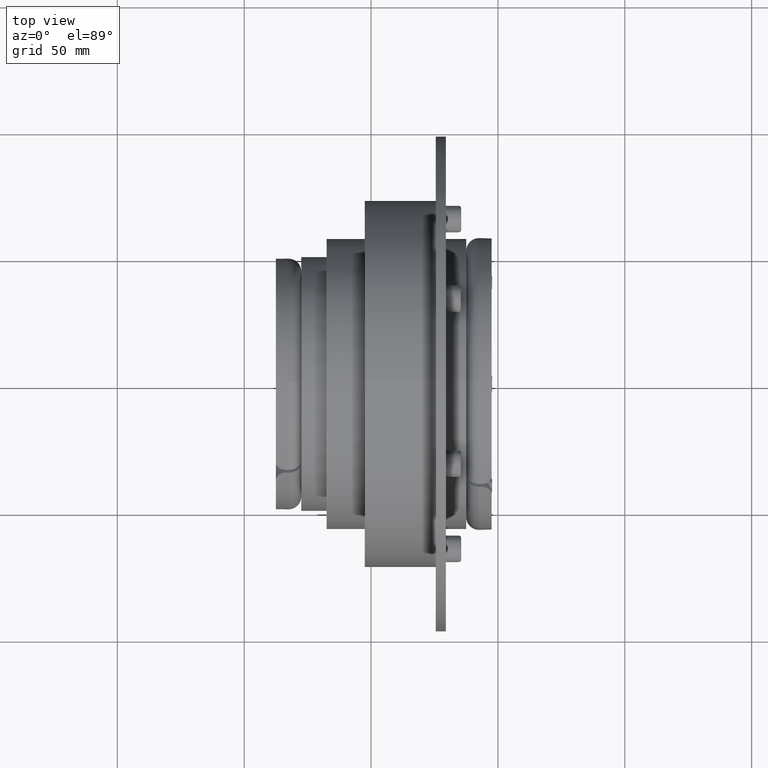
[diagram: clean part render]
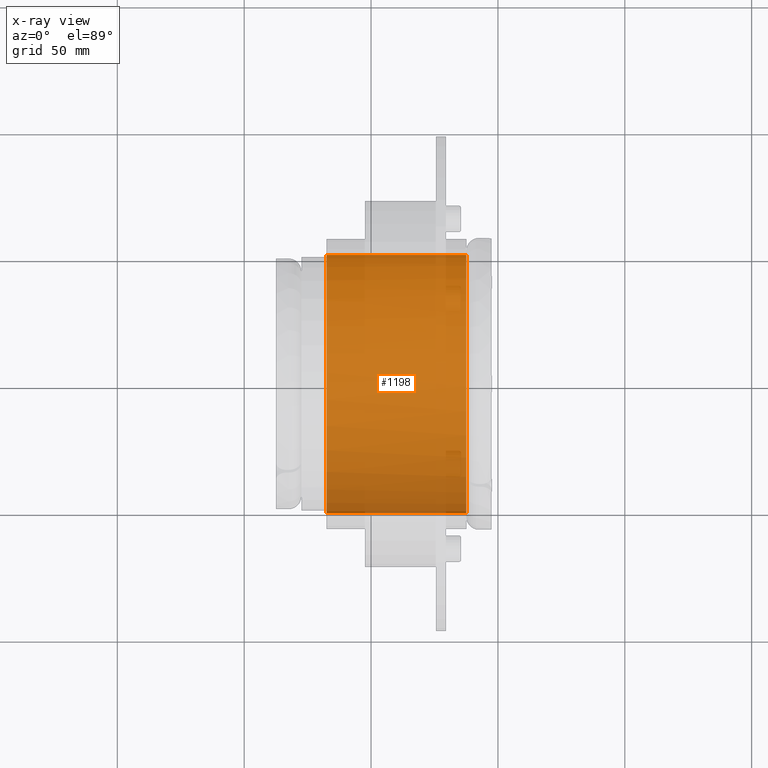
[diagram: x-ray — body ghosted, one internal face saturated and labeled with its STEP entity id]
A machine part, top view, then the same camera in x-ray: the body is ghosted and one INTERNAL B-rep face — a face not visible from any outside direction — is saturated and labeled: STEP entity #1198.
In plain terms, the highlighted cylindrical surface (partial cylindrical patch) has radius 50.85 mm, axis along (-1, 0, 0).
Its self-contained STEP definition (entity closure, byte-faithful):
#710=CARTESIAN_POINT('',(47.0,-50.850000000000009,6.227123E-015));
#711=VERTEX_POINT('',#710);
#712=CARTESIAN_POINT('',(-8.0,-50.850000000000009,6.227123E-015));
#713=VERTEX_POINT('',#712);
#714=CARTESIAN_POINT('',(47.0,-50.850000000000009,6.227123E-015));
#715=DIRECTION('',(-1.0,0.0,0.0));
#716=VECTOR('',#715,55.0);
#717=LINE('',#714,#716);
#718=EDGE_CURVE('',#711,#713,#717,.T.);
#720=CARTESIAN_POINT('',(47.0,50.850000000000009,6.227123E-015));
#721=VERTEX_POINT('',#720);
#729=CARTESIAN_POINT('',(-8.0,50.850000000000009,-6.227123E-015));
#730=VERTEX_POINT('',#729);
#731=CARTESIAN_POINT('',(-8.0,50.850000000000009,-6.227123E-015));
#732=DIRECTION('',(1.0,0.0,0.0));
#733=VECTOR('',#732,55.0);
#734=LINE('',#731,#733);
#735=EDGE_CURVE('',#730,#721,#734,.T.);
#1144=CARTESIAN_POINT('',(47.0,0.0,0.0));
#1145=DIRECTION('',(-1.0,0.0,0.0));
#1146=DIRECTION('',(0.0,-1.0,0.0));
#1147=AXIS2_PLACEMENT_3D('',#1144,#1145,#1146);
#1148=CIRCLE('',#1147,50.850000000000009);
#1149=EDGE_CURVE('',#711,#721,#1148,.T.);
#1172=CARTESIAN_POINT('',(0.0,0.0,0.0));
#1173=DIRECTION('',(1.0,0.0,0.0));
#1174=DIRECTION('',(0.0,-1.0,0.0));
#1175=AXIS2_PLACEMENT_3D('',#1172,#1173,#1174);
#1176=CYLINDRICAL_SURFACE('',#1175,50.850000000000009);
#1177=ORIENTED_EDGE('',*,*,#718,.T.);
#1178=CARTESIAN_POINT('',(-8.0,6.227123E-015,50.850000000000009));
#1179=VERTEX_POINT('',#1178);
#1180=CARTESIAN_POINT('',(-8.0,0.0,0.0));
#1181=DIRECTION('',(1.0,0.0,0.0));
#1182=DIRECTION('',(0.0,0.0,-1.0));
#1183=AXIS2_PLACEMENT_3D('',#1180,#1181,#1182);
#1184=CIRCLE('',#1183,50.850000000000009);
#1185=EDGE_CURVE('',#1179,#713,#1184,.T.);
#1186=ORIENTED_EDGE('',*,*,#1185,.F.);
#1187=CARTESIAN_POINT('',(-8.0,0.0,0.0));
#1188=DIRECTION('',(1.0,0.0,0.0));
#1189=DIRECTION('',(0.0,0.0,-1.0));
#1190=AXIS2_PLACEMENT_3D('',#1187,#1188,#1189);
#1191=CIRCLE('',#1190,50.850000000000009);
#1192=EDGE_CURVE('',#730,#1179,#1191,.T.);
#1193=ORIENTED_EDGE('',*,*,#1192,.F.);
#1194=ORIENTED_EDGE('',*,*,#735,.T.);
#1195=ORIENTED_EDGE('',*,*,#1149,.F.);
#1196=EDGE_LOOP('',(#1177,#1186,#1193,#1194,#1195));
#1197=FACE_OUTER_BOUND('',#1196,.T.);
#1198=ADVANCED_FACE('',(#1197),#1176,.F.);